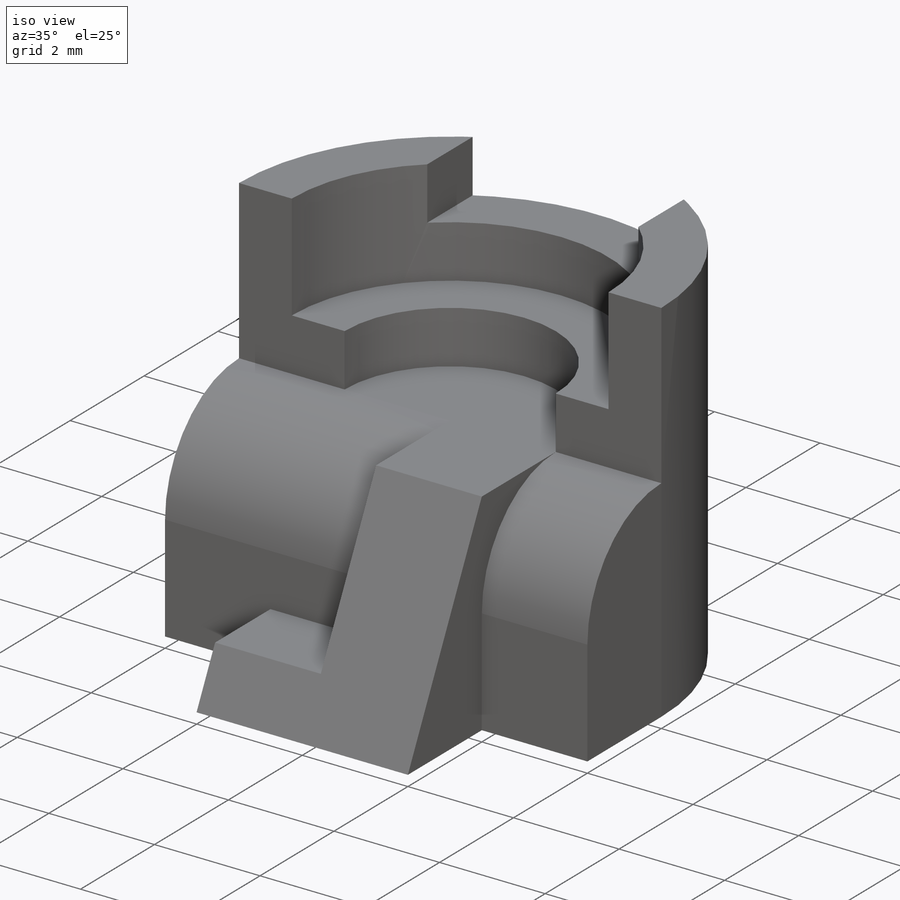
[diagram: iso view]
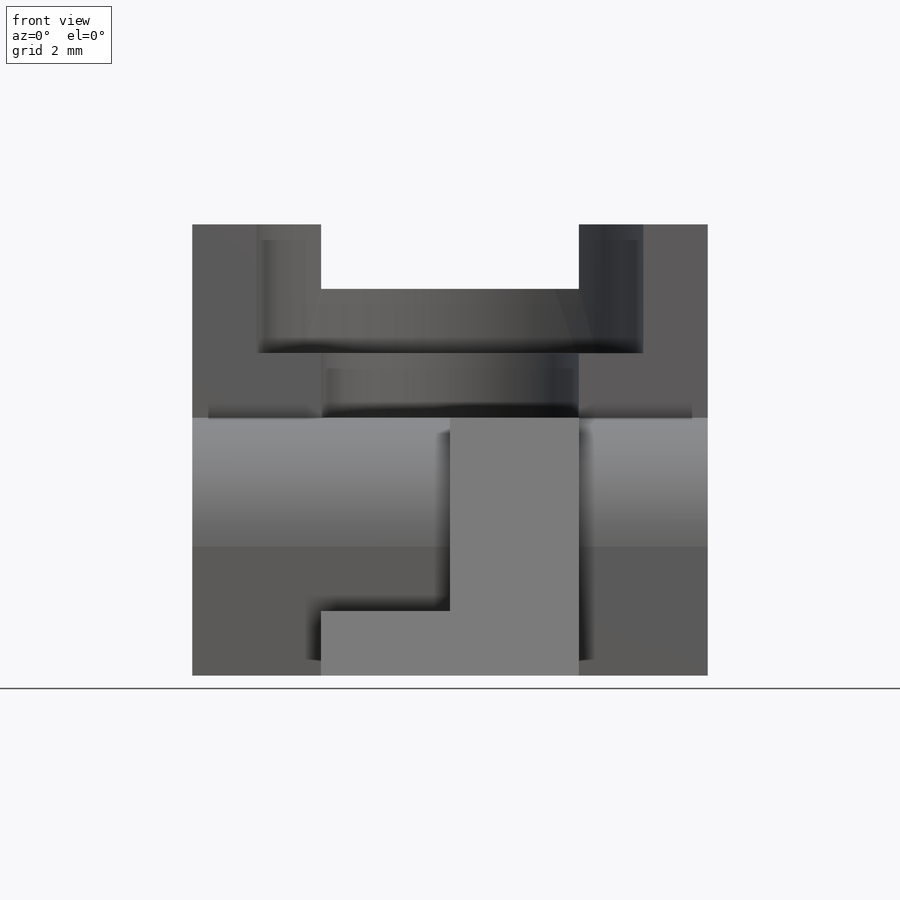
[diagram: front view]
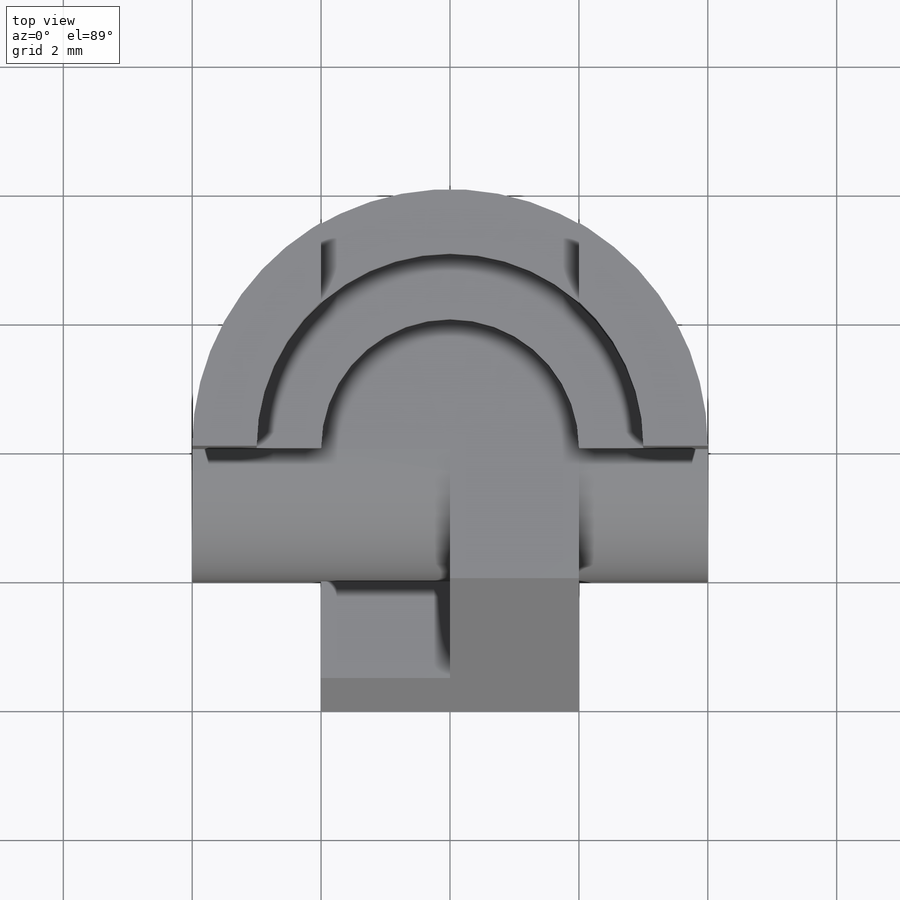
[diagram: top view]
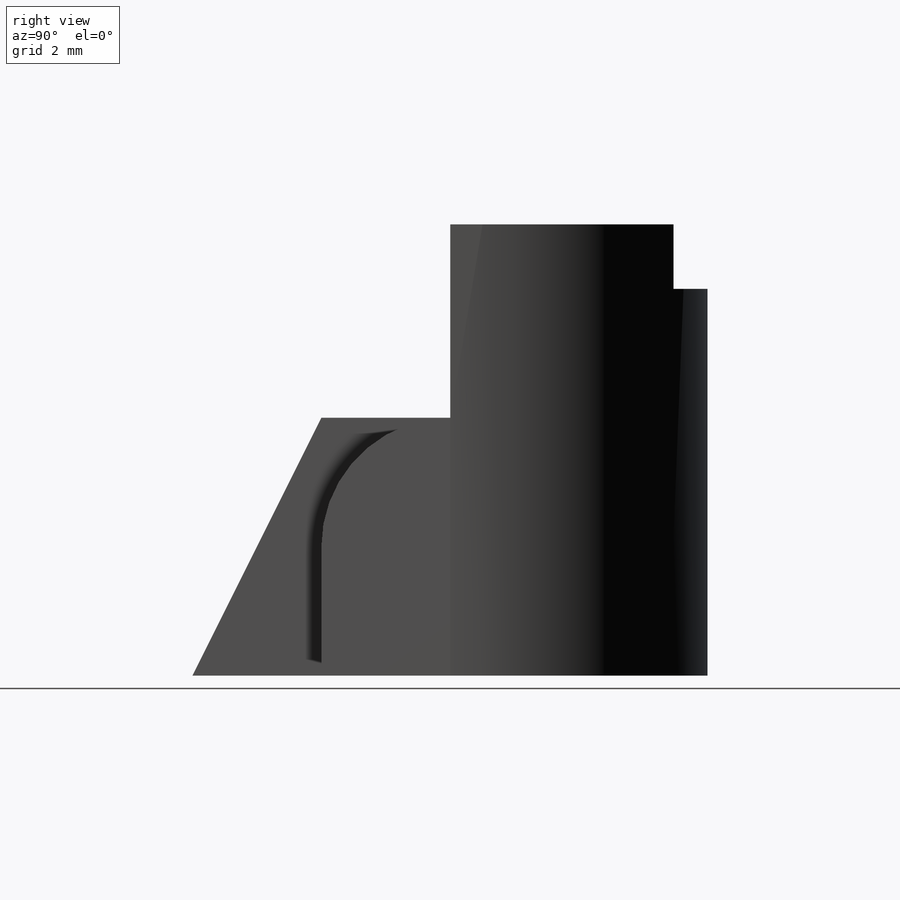
[diagram: right view]
SOLIDWORKS PART (.sldprt)
format: sldprt  version: not decoded by parser v0  size: 214,016 bytes
history: native  units: mm
features: sketch x4, extrude x2, material x1, revolve x1, cut_extrude x1, chamfer x1 (+13 scaffold rows collapsed)
feature tree (23):
  scaffold x13  (default folders/planes/origin — collapsed)
  material  "Material <not specified>"
  sketch  "Sketch1"  dims[D1=1.0mm D2=1.0mm D3=2.0mm D4=1.0mm D5=2.0mm D6=7.0mm D7=0.0mm]
  revolve  "Revolve1"  Angle=180deg
  sketch  "Sketch2"  dims[D1=1.0mm D2=4.0mm D3=2.0mm]
  cut_extrude  "Cut-Extrude1"  Depth=10mm
  sketch  "Sketch3"  dims[D2=2.0mm D1=2.0mm D3=2.0mm D4=4.0mm]
  extrude  "Boss-Extrude1"  Depth=8mm
  sketch  "Sketch4"
  extrude  "Boss-Extrude2"  Depth=4mm
  chamfer  "Chamfer1"  Distance=2mm
decode coverage: 8 of 9 modeling features carry decoded parameters
note: suppression state not decoded; provenance and decode notes live in map.json
